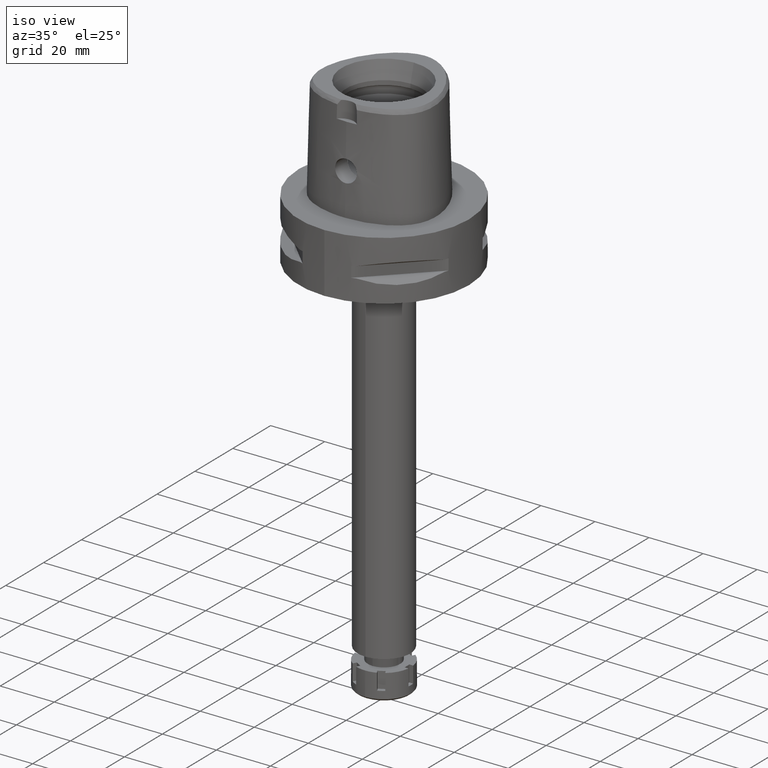
[diagram: clean part render]
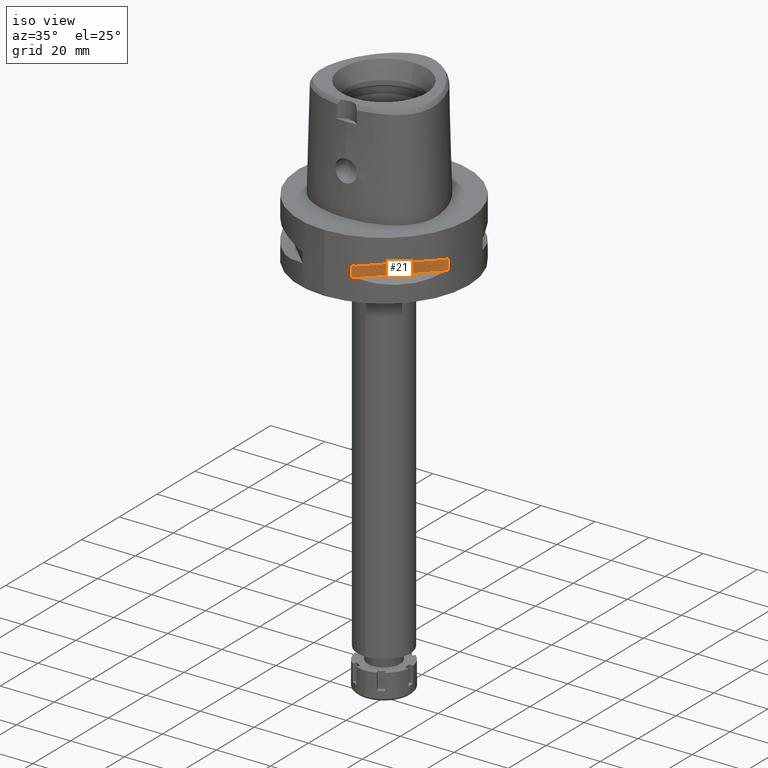
[diagram: same view with one face highlighted and labeled with its STEP entity id]
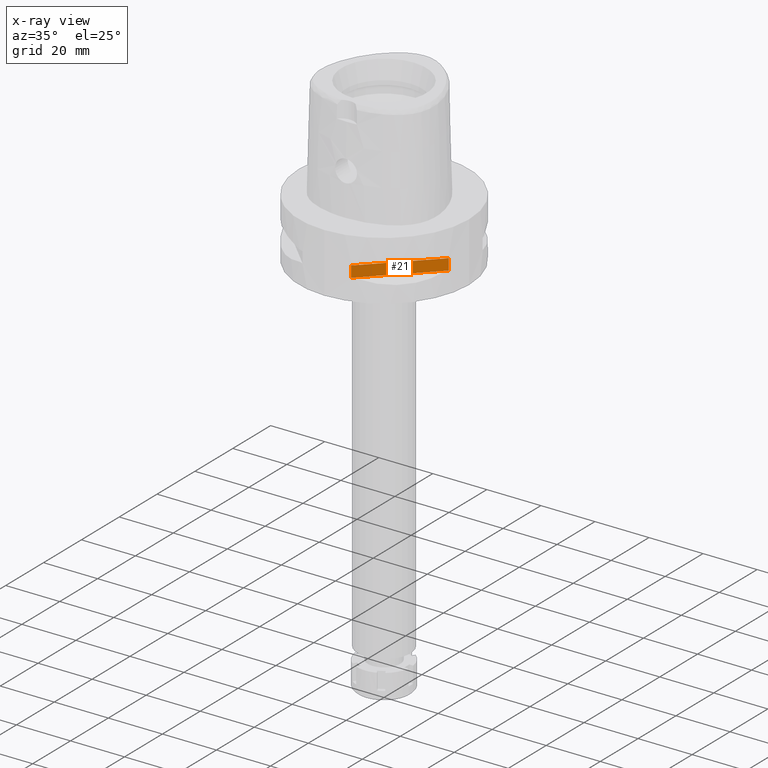
[diagram: x-ray of the same camera — body ghosted, the highlighted face saturated]
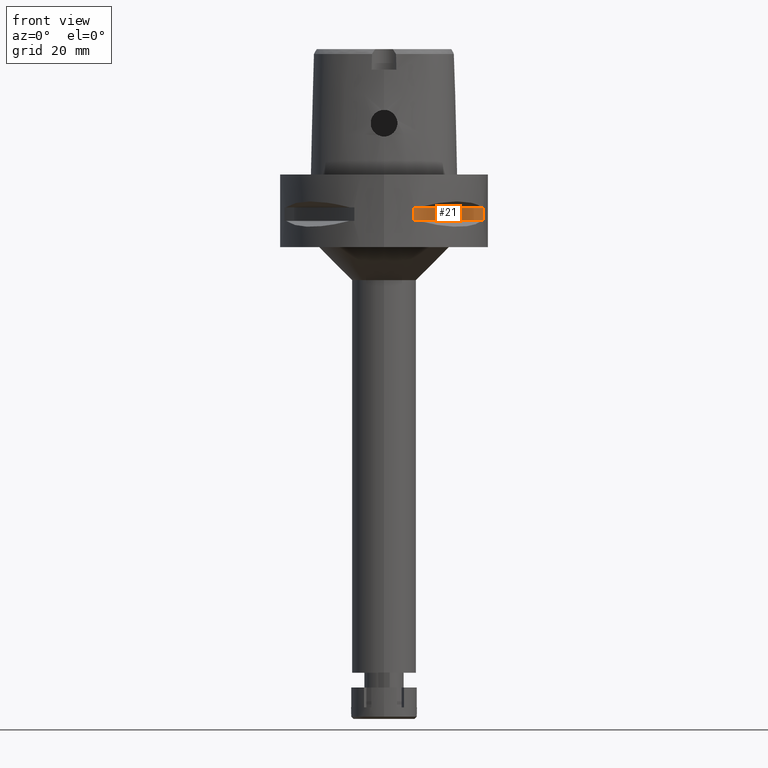
[diagram: same view with one face highlighted and labeled with its STEP entity id]
A machine part, iso view. The second image highlights one B-rep face of the part: STEP entity #21.
The next image is the same camera in x-ray: the body ghosted, the highlighted face saturated — about 0% of this face is hidden behind the body in this view.
A second angle (front view) of the same face is appended — the face is thin or edge-on in the first view.
In plain terms, the highlighted planar face has unit normal (-0.7071, 0.7071, 0).
Its self-contained STEP definition (entity closure, byte-faithful):
#12 = DIRECTION ( 'NONE',  ( -0.7071067811865475727, 0.7071067811865475727, 0.0000000000000000000 ) ) ;
#21 = ADVANCED_FACE ( 'NONE', ( #2091 ), #5507, .F. ) ;
#70 = ORIENTED_EDGE ( 'NONE', *, *, #2144, .T. ) ;
#113 = LINE ( 'NONE', #3949, #3798 ) ;
#146 = CARTESIAN_POINT ( 'NONE',  ( 30.19251670572000279, -8.981198972017999438, -9.950000000000001066 ) ) ;
#165 = ORIENTED_EDGE ( 'NONE', *, *, #4085, .F. ) ;
#280 = VERTEX_POINT ( 'NONE', #146 ) ;
#401 = LINE ( 'NONE', #5555, #4505 ) ;
#859 = AXIS2_PLACEMENT_3D ( 'NONE', #3849, #12, #1673 ) ;
#1108 = DIRECTION ( 'NONE',  ( 0.0000000000000000000, 0.0000000000000000000, -1.000000000000000000 ) ) ;
#1116 = ORIENTED_EDGE ( 'NONE', *, *, #2245, .T. ) ;
#1673 = DIRECTION ( 'NONE',  ( 0.0000000000000000000, 0.0000000000000000000, 1.000000000000000000 ) ) ;
#2050 = DIRECTION ( 'NONE',  ( 0.7071067811865474617, 0.7071067811865474617, 0.0000000000000000000 ) ) ;
#2091 = FACE_OUTER_BOUND ( 'NONE', #3723, .T. ) ;
#2144 = EDGE_CURVE ( 'NONE', #4855, #2153, #4050, .T. ) ;
#2153 = VERTEX_POINT ( 'NONE', #3630 ) ;
#2169 = ORIENTED_EDGE ( 'NONE', *, *, #3573, .T. ) ;
#2245 = EDGE_CURVE ( 'NONE', #2153, #4263, #4165, .T. ) ;
#2767 = CARTESIAN_POINT ( 'NONE',  ( 8.981198972017999438, -30.19251670572000279, -14.05000000000000071 ) ) ;
#3113 = VECTOR ( 'NONE', #2050, 1000.000000000000114 ) ;
#3309 = DIRECTION ( 'NONE',  ( 0.0000000000000000000, 0.0000000000000000000, 1.000000000000000000 ) ) ;
#3573 = EDGE_CURVE ( 'NONE', #4263, #280, #401, .T. ) ;
#3630 = CARTESIAN_POINT ( 'NONE',  ( 8.981198972017999438, -30.19251670572000279, -14.05000000000000071 ) ) ;
#3723 = EDGE_LOOP ( 'NONE', ( #165, #70, #1116, #2169 ) ) ;
#3798 = VECTOR ( 'NONE', #5214, 1000.000000000000114 ) ;
#3849 = CARTESIAN_POINT ( 'NONE',  ( 33.72899346260000186, -5.444722215136000187, -9.950000000000001066 ) ) ;
#3949 = CARTESIAN_POINT ( 'NONE',  ( 8.981198972017999438, -30.19251670572000279, -9.950000000000001066 ) ) ;
#4050 = LINE ( 'NONE', #4077, #5356 ) ;
#4077 = CARTESIAN_POINT ( 'NONE',  ( 8.981198972017999438, -30.19251670572000279, -9.950000000000001066 ) ) ;
#4085 = EDGE_CURVE ( 'NONE', #4855, #280, #113, .T. ) ;
#4122 = CARTESIAN_POINT ( 'NONE',  ( 8.981198972019999616, -30.19251670572000279, -9.950000000000001066 ) ) ;
#4165 = LINE ( 'NONE', #2767, #3113 ) ;
#4263 = VERTEX_POINT ( 'NONE', #4531 ) ;
#4505 = VECTOR ( 'NONE', #3309, 1000.000000000000000 ) ;
#4531 = CARTESIAN_POINT ( 'NONE',  ( 30.19251670572000279, -8.981198972019999616, -14.05000000000000071 ) ) ;
#4855 = VERTEX_POINT ( 'NONE', #4122 ) ;
#5214 = DIRECTION ( 'NONE',  ( 0.7071067811865474617, 0.7071067811865474617, 0.0000000000000000000 ) ) ;
#5356 = VECTOR ( 'NONE', #1108, 1000.000000000000000 ) ;
#5507 = PLANE ( 'NONE',  #859 ) ;
#5555 = CARTESIAN_POINT ( 'NONE',  ( 30.19251670572000279, -8.981198972017999438, -14.05000000000000071 ) ) ;